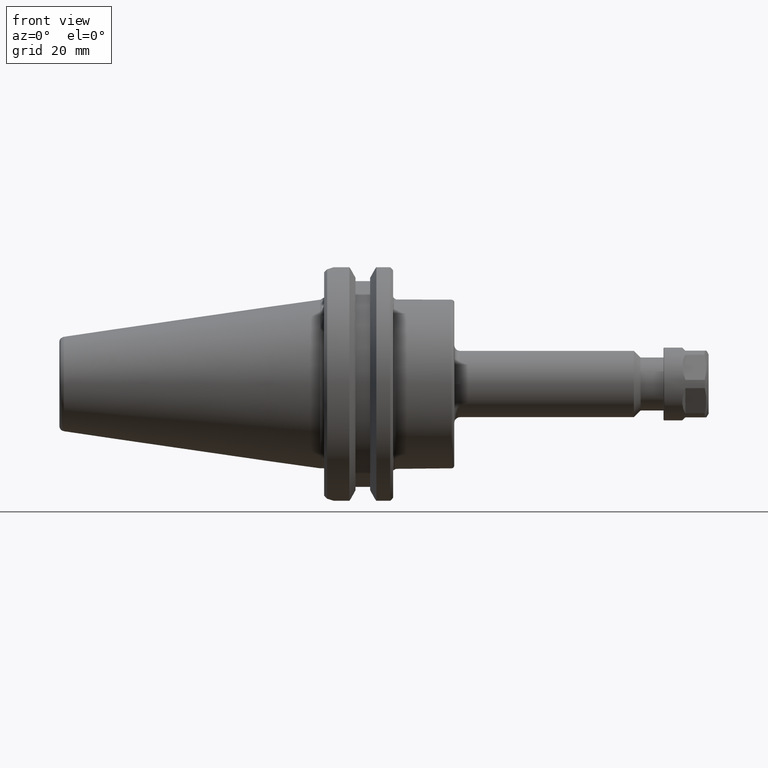
[diagram: clean part render]
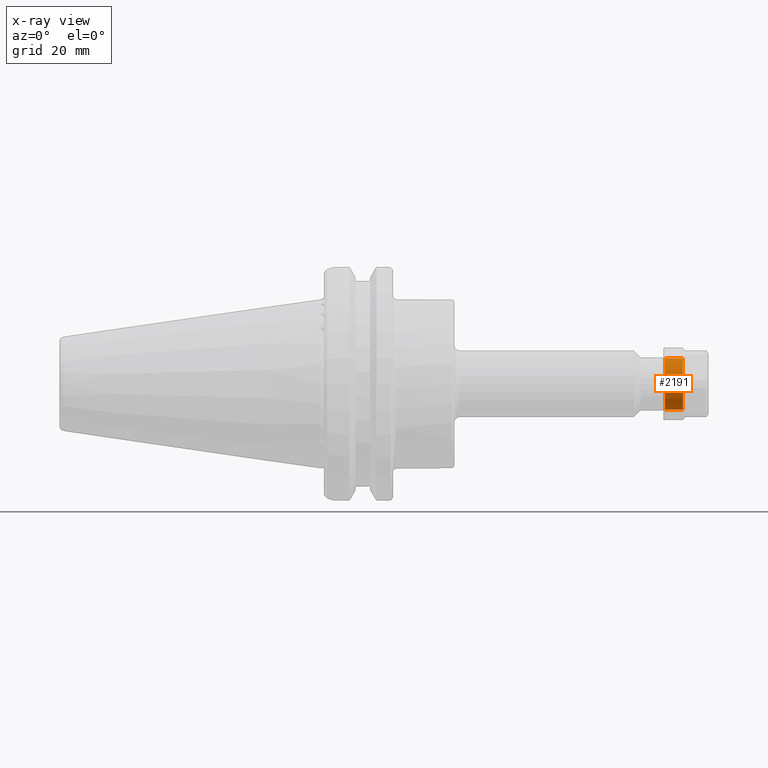
[diagram: x-ray — body ghosted, one internal face saturated and labeled with its STEP entity id]
A machine part, front view, then the same camera in x-ray: the body is ghosted and one INTERNAL B-rep face — a face not visible from any outside direction — is saturated and labeled: STEP entity #2191.
In plain terms, the highlighted cylindrical surface (bore or boss wall) has radius 6.6675 mm, axis along (-1, -0, 0).
Its self-contained STEP definition (entity closure, byte-faithful):
#145=CYLINDRICAL_SURFACE('',#2422,0.2625);
#487=FACE_BOUND('',#792,.T.);
#608=FACE_OUTER_BOUND('',#791,.T.);
#791=EDGE_LOOP('',(#1931));
#792=EDGE_LOOP('',(#1932));
#904=CIRCLE('',#2421,0.2625);
#905=CIRCLE('',#2423,0.2625);
#1133=VERTEX_POINT('',#4501);
#1134=VERTEX_POINT('',#4504);
#1405=EDGE_CURVE('',#1133,#1133,#904,.T.);
#1406=EDGE_CURVE('',#1134,#1134,#905,.T.);
#1931=ORIENTED_EDGE('',*,*,#1406,.F.);
#1932=ORIENTED_EDGE('',*,*,#1405,.F.);
#2191=ADVANCED_FACE('',(#608,#487),#145,.F.);
#2421=AXIS2_PLACEMENT_3D('',#4502,#2974,#2975);
#2422=AXIS2_PLACEMENT_3D('',#4503,#2976,#2977);
#2423=AXIS2_PLACEMENT_3D('',#4505,#2978,#2979);
#2974=DIRECTION('center_axis',(-1.,0.,0.));
#2975=DIRECTION('ref_axis',(0.,-1.,0.));
#2976=DIRECTION('center_axis',(1.,0.,0.));
#2977=DIRECTION('ref_axis',(0.,1.,0.));
#2978=DIRECTION('center_axis',(1.,0.,0.));
#2979=DIRECTION('ref_axis',(0.,1.,0.));
#4501=CARTESIAN_POINT('',(0.45,0.2625,-3.21459167878374E-17));
#4502=CARTESIAN_POINT('Origin',(0.45,0.,0.));
#4503=CARTESIAN_POINT('Origin',(0.365,0.,0.));
#4504=CARTESIAN_POINT('',(0.265,0.2625,0.));
#4505=CARTESIAN_POINT('Origin',(0.265,0.,0.));